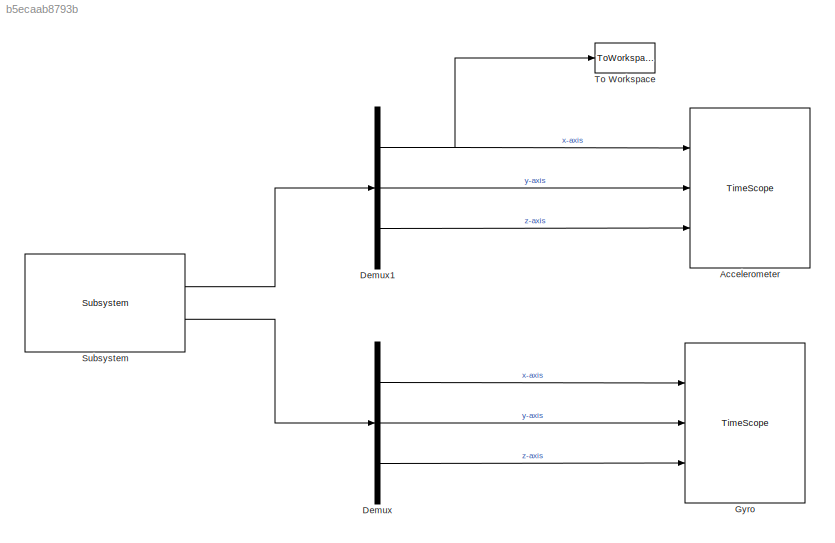
MODEL slx_b5ecaab8793b
KIND model
BLOCK [TimeScope] Accelerometer
  DefaultConfigurationName = spbscopes.TimeScopeBlockCfg
  NumInputPorts = 3
  Ports = [3]
  ScopeSpecificationString = spbscopes.TimeScopeBlockCfg('CurrentConfiguration', extmgr.ConfigurationSet(extmgr.Configuration('Core','General UI',true,'FigureColor',[0 0 0]),extmgr.Configuration('Core','Source UI',true),extmgr.Configuration('Sources','WiredSimulink',true,'PointsPerSignal',6000,'SampleTime','0.01','DataLogging',true,'DataLoggingSaveFormat','StructureWithTime','DataLoggingVariableName','ScopeData1'),extmgr.Conf...<+2994ch>
  UserDataPersistent = on
BLOCK [Demux] Demux
  DisplayOption = bar
  Outputs = 3
  Ports = [1, 3]
BLOCK [Demux] Demux1
  DisplayOption = bar
  Outputs = 3
  Ports = [1, 3]
BLOCK [TimeScope] Gyro
  DefaultConfigurationName = spbscopes.TimeScopeBlockCfg
  NumInputPorts = 3
  Ports = [3]
  ScopeSpecificationString = spbscopes.TimeScopeBlockCfg('CurrentConfiguration', extmgr.ConfigurationSet(extmgr.Configuration('Core','General UI',true,'FigureColor',[0 0 0]),extmgr.Configuration('Core','Source UI',true),extmgr.Configuration('Sources','WiredSimulink',true,'PointsPerSignal',6000,'SampleTime','0.01','DataLogging',true,'DataLoggingSaveFormat','StructureWithTime'),extmgr.Configuration('Visuals','Time Domain',true,...<+2966ch>
  UserDataPersistent = on
BLOCK [Reference] Subsystem  REF=BeagleBoneBlackCom/Subsystem
  Ports = [0, 2]
  SourceBlock = BeagleBoneBlackCom/Subsystem
  SourceType = MPU-9150
  accSens = 2 g
  gyroSens = 1000 degree/s
BLOCK [ToWorkspace] To Workspace
  FixptAsFi = on
  MaxDataPoints = inf
  Ports = [1]
  SampleTime = -1
  Save2DSignal = 3-D array (concatenate along third dimension)
  SaveFormat = Structure With Time
  VariableName = simout
NET Demux1:1 -> Accelerometer:1, To Workspace:1
LINE Demux1:2 -> Accelerometer:2
LINE Demux1:3 -> Accelerometer:3
LINE Demux:1 -> Gyro:1
LINE Demux:2 -> Gyro:2
LINE Demux:3 -> Gyro:3
LINE Subsystem:1 -> Demux1:1
LINE Subsystem:2 -> Demux:1
note: NET lines group one-source signal fan-out (src -> all destinations, sorted); 1:1 wires keep LINE
